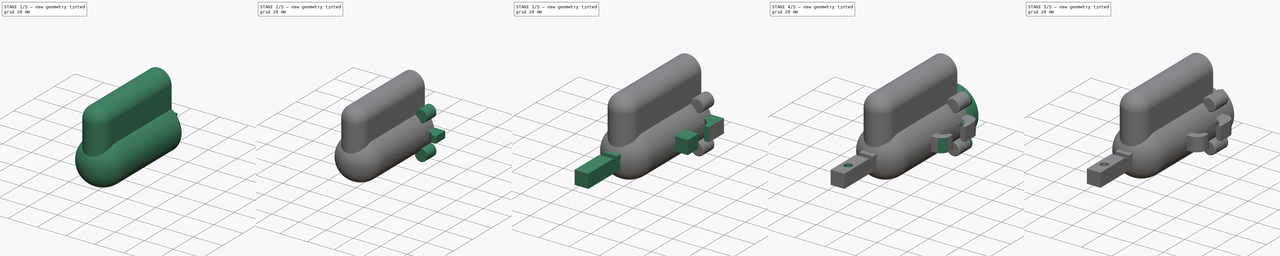
[diagram: build sequence overview — one tinted view per stage of 5, left to right]
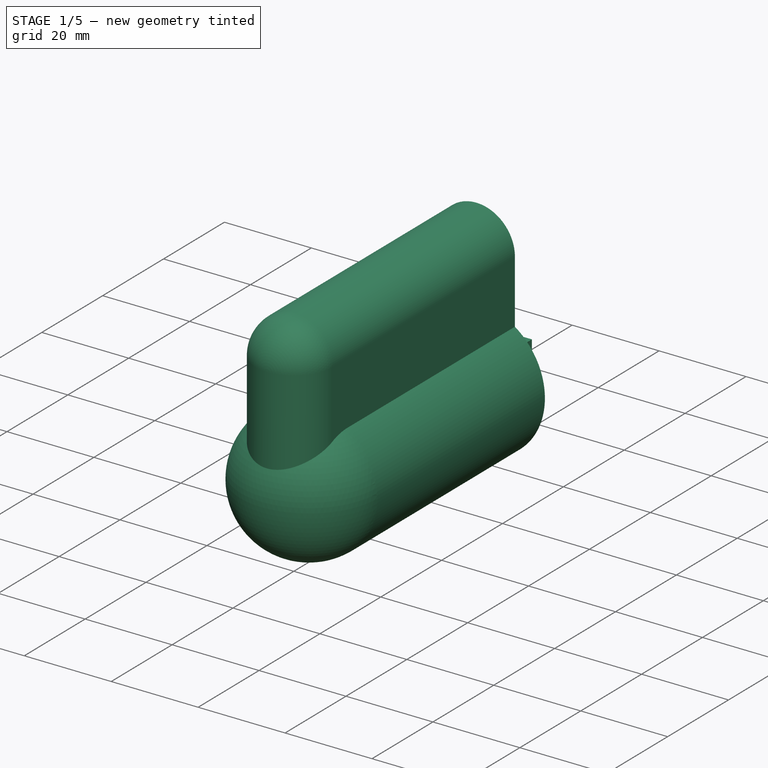
[diagram: stage 1 of 5 — iso view after this stage's code; geometry added in this stage tinted green]
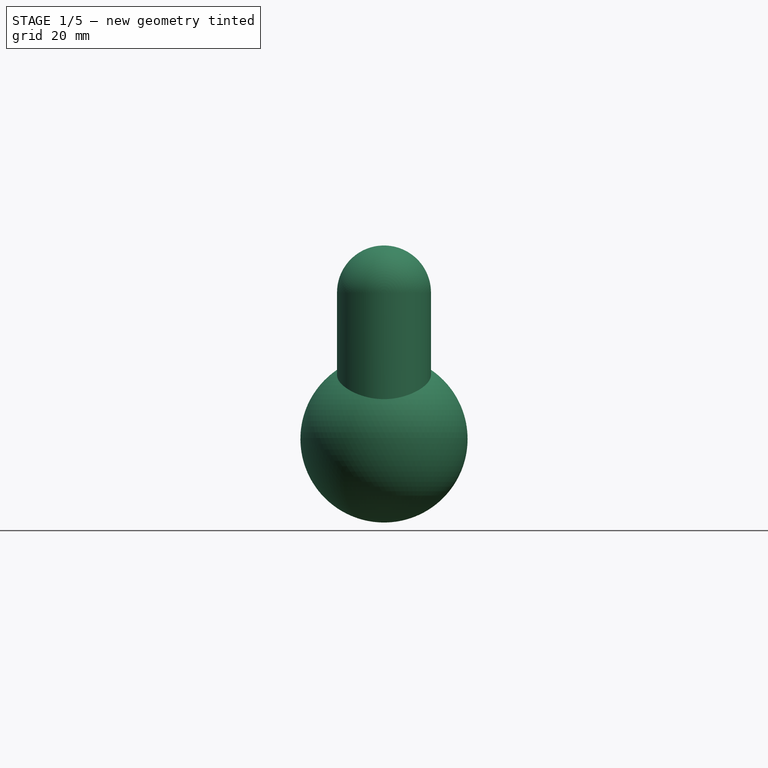
[diagram: stage 1 of 5 — front view after this stage's code; geometry added in this stage tinted green]
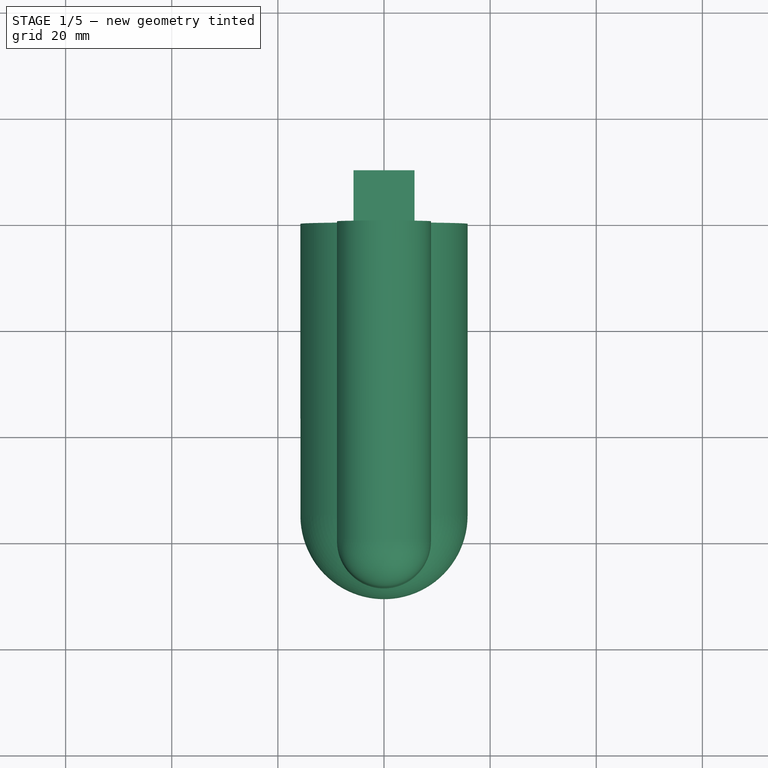
[diagram: stage 1 of 5 — top view after this stage's code; geometry added in this stage tinted green]
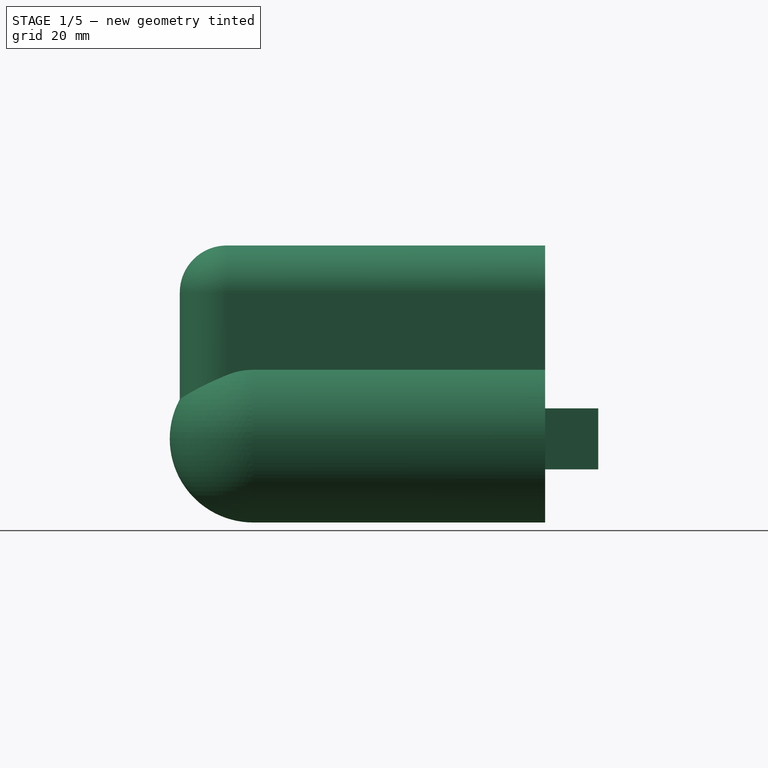
[diagram: stage 1 of 5 — right view after this stage's code; geometry added in this stage tinted green]
FCSTD DOCUMENT  (FreeCAD 0.19R24267 +99 (Git))
Label: miniU
License: All rights reserved
LicenseURL: http://en.wikipedia.org/wiki/All_rights_reserved
objects: PartDesign::AdditiveCylinder×11, PartDesign::SubtractiveCylinder×11, PartDesign::SubtractiveBox×7, PartDesign::Mirrored×7, PartDesign::AdditiveBox×6, PartDesign::Fillet×6, PartDesign::Body×5, PartDesign::PolarPattern×4, PartDesign::AdditiveSphere×2, PartDesign::SubtractiveSphere×2, Sketcher::SketchObject×1, PartDesign::SubtractiveWedge×1, PartDesign::AdditiveWedge×1, PartDesign::SubtractiveTorus×1
note: 113 computed .brp shape members not serialized (recipe doc carries the construction recipe); baked Part::Feature solids carry a one-line shape summary decoded from their .brp

FEATURE [PartDesign::AdditiveCylinder] Cylinder001  label="dart_holder_body"
  Angle = 360
  AttacherType = Attacher::AttachEngine3D
  AttachmentOffset = pos=(0,27.6,0) rot=(0,0,1;0rad)
  Height = 60
  MapMode = 5
  Placement = pos=(0,-6.1e-15,27.6) rot=(1,0,0;1.5708rad)
  Radius = 8.85
  Support = -> [XZ_Plane]
  expr: .AttachmentOffset.Base.y = Sketch.Constraints.chamberToHolder
  expr: Radius = Sketch.Constraints.rDartHolderOutside
  expr: Height = Sketch.Constraints.bodyLength + Sketch.Constraints.holderOffset
FEATURE [PartDesign::AdditiveBox] Box  label="chamber_holder_connector"
  AttacherType = Attacher::AttachEngine3D
  AttachmentOffset = pos=(-8.85,0,-60) rot=(0,0,1;0rad)
  BaseFeature = -> Cylinder001
  Height = 60
  Length = 17.7
  MapMode = 5
  Placement = pos=(-8.85,-60,27.6) rot=(-1,0,0;1.5708rad)
  Support = -> [Cylinder001]
  Width = 27.6
  expr: Length = Cylinder001.Radius * 2
  expr: .AttachmentOffset.Base.x = -Cylinder001.Radius
  expr: .AttachmentOffset.Base.z = -Cylinder001.Height
  expr: Height = Cylinder001.Height
  expr: Width = Sketch.Constraints.chamberToHolder
FEATURE [PartDesign::AdditiveSphere] Sphere  label="chamber_butt"
  Angle1 = -90
  Angle2 = 90
  Angle3 = 180
  AttacherType = Attacher::AttachEngine3D
  AttachmentOffset = pos=(-8.85,5,0) rot=(0,0,-1;3.14159rad)
  BaseFeature = -> Box
  MapMode = 5
  Placement = pos=(0,-55,-1.31e-14) rot=(-1,0,0;3.14159rad)
  Radius = 15.75
  Support = -> [Box]
  expr: .AttachmentOffset.Base.y = Sketch.Constraints.holderOffset
  expr: .AttachmentOffset.Base.x = -Cylinder001.Radius
  expr: Radius = Sketch.Constraints.rAirChamberOutside
FEATURE [PartDesign::AdditiveSphere] Sphere002  label="holder_butt"
  Angle1 = -90
  Angle2 = 90
  Angle3 = 360
  AttacherType = Attacher::AttachEngine3D
  BaseFeature = -> Sphere
  MapMode = 11
  Placement = pos=(0,-60,27.6) rot=(0.57735,-0.57735,0.57735;2.0944rad)
  Radius = 8.85
  Support = -> [Cylinder001]
  expr: Radius = Cylinder001.Radius
FEATURE [PartDesign::AdditiveCylinder] Cylinder  label="butt_connector"
  Angle = 180
  AttacherType = Attacher::AttachEngine3D
  AttachmentOffset = pos=(-8.85,0,-27.6) rot=(0,0,1;3.14159rad)
  BaseFeature = -> Sphere002
  Height = 27.6
  MapMode = 5
  Placement = pos=(0,-60,27.6) rot=(1,0,0;3.14159rad)
  Radius = 8.85
  Support = -> [Box]
  expr: .AttachmentOffset.Base.x = -Radius
  expr: Radius = Sphere002.Radius
  expr: Height = Box.Width
  expr: .AttachmentOffset.Base.z = -Box.Width
FEATURE [Sketcher::SketchObject] Sketch
  FullyConstrained = false
  MapMode = 5
  Placement = pos=(0,0,0) rot=(1,0,0;1.5708rad)
  expr: .Constraints.rAirChamber = 13.75mm
  expr: .Constraints.rDartHolderOutside = .Constraints.rDartHolder + .Constraints.wallThickness
  expr: .Constraints.chamberToHolder = .Constraints.rAirChamberOutside + .Constraints.rDartHolderOutside + .Constraints.triggerClearance
  expr: .Constraints.plungerHeadSpace = .Constraints.plungerHeadHeight + .Constraints.plungerConnectorHeight + 10mm
  sketch-geometry (34):
    g0: Circle CenterX=0 CenterY=-4e-16 CenterZ=0 NormalX=0 NormalY=0 NormalZ=1 AngleXU=0 Radius=13.75
    g1: Circle CenterX=0 CenterY=-4e-16 CenterZ=0 NormalX=0 NormalY=0 NormalZ=1 AngleXU=0 Radius=15.75
    g2: LineSegment StartX=0 StartY=-4e-16 StartZ=0 EndX=-11.1369 EndY=11.1369 EndZ=0
    g3: LineSegment StartX=0 StartY=-4e-16 StartZ=0 EndX=11.1369 EndY=-11.1369 EndZ=0
    g4: LineSegment StartX=0 StartY=-4e-16 StartZ=0 EndX=-11.1369 EndY=-11.1369 EndZ=0
    g5: LineSegment StartX=0 StartY=-4e-16 StartZ=0 EndX=11.1369 EndY=11.1369 EndZ=0
    g6: Circle CenterX=-12.9047 CenterY=12.9047 CenterZ=0 NormalX=0 NormalY=0 NormalZ=1 AngleXU=0 Radius=4.5
    g7: Circle CenterX=-12.9047 CenterY=12.9047 CenterZ=0 NormalX=0 NormalY=0 NormalZ=1 AngleXU=0 Radius=2.5
    g8: Circle CenterX=12.9047 CenterY=12.9047 CenterZ=0 NormalX=0 NormalY=0 NormalZ=1 AngleXU=0 Radius=4.5
    g9: Circle CenterX=12.9047 CenterY=-12.9047 CenterZ=0 NormalX=0 NormalY=0 NormalZ=1 AngleXU=0 Radius=4.5
    g10: Circle CenterX=-12.9047 CenterY=-12.9047 CenterZ=0 NormalX=0 NormalY=0 NormalZ=1 AngleXU=0 Radius=4.5
    g11: Circle CenterX=12.9047 CenterY=12.9047 CenterZ=0 NormalX=0 NormalY=0 NormalZ=1 AngleXU=0 Radius=2.5
    g12: Circle CenterX=12.9047 CenterY=-12.9047 CenterZ=0 NormalX=0 NormalY=0 NormalZ=1 AngleXU=0 Radius=2.5
    g13: Circle CenterX=-12.9047 CenterY=-12.9047 CenterZ=0 NormalX=0 NormalY=0 NormalZ=1 AngleXU=0 Radius=2.5
    g14: LineSegment StartX=-64.4343 StartY=16.9456 StartZ=0 EndX=-65.991 EndY=15.6899 EndZ=0
    g15: Circle CenterX=0 CenterY=27.6 CenterZ=0 NormalX=0 NormalY=0 NormalZ=1 AngleXU=0 Radius=6.85
    g16: Circle CenterX=0 CenterY=27.6 CenterZ=0 NormalX=0 NormalY=0 NormalZ=1 AngleXU=0 Radius=8.85
    g17: LineSegment StartX=-40.3343 StartY=20.9092 StartZ=0 EndX=-43.3342 EndY=20.8833 EndZ=0
    g18: LineSegment StartX=-20.9206 StartY=68.2193 StartZ=0 EndX=-61.9315 EndY=31.5708 EndZ=0
    g19: LineSegment StartX=21.11 StartY=51.0184 StartZ=0 EndX=24.006 EndY=46.9425 EndZ=0
    g20: LineSegment StartX=-12.7279 StartY=-12.7279 StartZ=0 EndX=12.7279 EndY=-12.7279 EndZ=0
    g21: LineSegment StartX=52.0801 StartY=33.9087 StartZ=0 EndX=59.1988 EndY=26.8856 EndZ=0
    g22: LineSegment StartX=35.6743 StartY=43.6176 StartZ=0 EndX=37.6673 EndY=43.4507 EndZ=0
    g23: Circle CenterX=-12.9047 CenterY=12.9047 CenterZ=0 NormalX=0 NormalY=0 NormalZ=1 AngleXU=0 Radius=2
    g24: LineSegment StartX=-26.9818 StartY=14.1414 StartZ=0 EndX=-26.9818 EndY=4.14137 EndZ=0
    g25: LineSegment StartX=-27.1419 StartY=18.6048 StartZ=0 EndX=-17.1419 EndY=18.6048 EndZ=0
    g26: LineSegment StartX=97.724 StartY=55.6573 StartZ=0 EndX=98.9263 EndY=52.9088 EndZ=0
    g27: LineSegment StartX=114.207 StartY=50.7764 StartZ=0 EndX=114.698 EndY=50.6847 EndZ=0
    g28: LineSegment StartX=128.072 StartY=57.8158 StartZ=0 EndX=130.022 EndY=55.5362 EndZ=0
    g29: LineSegment StartX=-61.6116 StartY=53.8695 StartZ=0 EndX=-84.0125 EndY=38.7962 EndZ=0
    g30: LineSegment StartX=-32.8534 StartY=69.7309 StartZ=0 EndX=67.1466 EndY=69.7309 EndZ=0
    g31: Circle CenterX=50.0754 CenterY=-16.528 CenterZ=0 NormalX=0 NormalY=0 NormalZ=1 AngleXU=0 Radius=9.625
    g32: LineSegment StartX=83.804 StartY=28.6893 StartZ=0 EndX=88.0476 EndY=23.1224 EndZ=0
    g33: LineSegment StartX=89.8323 StartY=40.8566 StartZ=0 EndX=96.5827 EndY=33.4789 EndZ=0
  constraints (65):
    c: Coincident(g0,g-1)
    c: Coincident(g1,g0)
    c: Radius(g0) = 13.75  'rAirChamber'
    c: Radius(g1) = 15.75  'rAirChamberOutside'
    c: Coincident(g2,g0)
    c: PointOnObject(g2,g1)
    c: Coincident(g3,g0)
    c: PointOnObject(g3,g1)
    c: Coincident(g4,g0)
    c: PointOnObject(g4,g1)
    c: Angle(g2) = 2.35619
    c: Angle(g3) = -0.785398
    c: Angle(g4) = -2.35619
    c: Coincident(g5,g0)
    c: PointOnObject(g5,g1)
    c: Angle(g5) = 0.785398
    c: PointOnObject(g6,g2)
    c: Diameter(g6) = 9  'dNutOutside'
    c: Coincident(g7,g6)
    c: Diameter(g7) = 5  'dInsert'
    c: Equal(g8,g10)
    c: PointOnObject(g8,g5)
    c: PointOnObject(g9,g3)
    c: PointOnObject(g10,g4)
    c: Coincident(g11,g8)
    c: Coincident(g12,g9)
    c: Coincident(g13,g10)
    c: Equal(g11,g12)
    c: Distance(g14) = 2  'wallThickness'
    c: PointOnObject(g15,g-2)
    c: Coincident(g16,g15)
    c: Radius(g15) = 6.85  'rDartHolder'
    c: Radius(g16) = 8.85  'rDartHolderOutside'
    c: Distance(g15,g0) = 27.6  'chamberToHolder'
    c: Distance(g17) = 3  'triggerClearance'
    c: Distance(g18) = 55  'bodyLength'
    c: Tangent(g6,g0)
    c: Tangent(g8,g0)
    c: Tangent(g9,g0)
    c: Tangent(g10,g0)
    c: Distance(g19) = 5  'holderOffset'
    c: Distance(g20) = 25.4558  'threadDistance'
    c: Distance(g21) = 10  'chamberCapThickness'
    c: Radius(g6) = 4.5  'rNutOutside'
    c: Radius(g7) = 2.5  'rInsert'
    c: Distance(g22) = 2  'capThreadThickness'
    c: Coincident(g23,g6)
    c: Radius(g23) = 2  'rThread'
    c: Vertical(g24)
    c: Horizontal(g25)
    c: Distance(g25) = 10  'capHoleWidth'
    c: Distance(g24) = 10  'capHoleLength'
    c: Equal(g6,g8)
    c: Equal(g8,g9)
    c: Equal(g12,g13)
    c: Distance(g26) = 3  'triggerFrame'
    c: Distance(g27) = 0.5  'triggerFrameClearance'
    c: Distance(g28) = 3  'triggerFrameThickness'
    c: Distance(g29) = 27  'plungerHeadSpace'
    c: Horizontal(g30)
    c: Distance(g30) = 100  'plungerLength'
    c: Diameter(g31) = 19.25  'dPlungerHead'
    c: Radius(g31) = 9.625  'rPlungerHead'
    c: Distance(g32) = 7  'plungerHeadHeight'
    c: Distance(g33) = 10  'plungerConnectorHeight'
FEATURE [PartDesign::AdditiveCylinder] Cylinder002  label="air_chamber_body"
  Angle = 360
  AttacherType = Attacher::AttachEngine3D
  BaseFeature = -> Cylinder
  Height = 55
  MapMode = 2
  Placement = pos=(0,0,0) rot=(1,0,0;1.5708rad)
  Radius = 15.75
  Support = -> [Sketch]
  expr: Radius = Sketch.Constraints.rAirChamberOutside
  expr: Height = Cylinder001.Height - Sketch.Constraints.holderOffset
FEATURE [PartDesign::SubtractiveCylinder] Cylinder003  label="air_chamber"
  Angle = 360
  AttacherType = Attacher::AttachEngine3D
  BaseFeature = -> Cylinder002
  Height = 55
  MapMode = 2
  Placement = pos=(0,0,0) rot=(1,0,0;1.5708rad)
  Radius = 13.75
  Support = -> [Sketch]
  expr: Radius = Sketch.Constraints.rAirChamber
  expr: Height = Cylinder001.Height - Sketch.Constraints.holderOffset
FEATURE [PartDesign::SubtractiveCylinder] Cylinder004  label="butt_connector_channel"
  Angle = 180
  AttacherType = Attacher::AttachEngine3D
  BaseFeature = -> Cylinder003
  Height = 27.6
  MapMode = 2
  Placement = pos=(0,-60,27.6) rot=(1,0,0;3.14159rad)
  Radius = 6.85
  Support = -> [Cylinder]
  expr: Radius = Cylinder.Radius - 2mm
  expr: Height = Cylinder.Height
FEATURE [PartDesign::AdditiveBox] Box002  label="plunger_body"
  AttacherType = Attacher::AttachEngine3D
  AttachmentOffset = pos=(-4.5,-4.5,0) rot=(0,0,1;0rad)
  Height = 100
  Length = 9
  MapMode = 5
  Placement = pos=(-4.5,1e-15,-4.5) rot=(1,0,0;1.5708rad)
  Refine = true
  Support = -> [XZ_Plane003]
  Width = 9
  expr: .AttachmentOffset.Base.x = -Length / 2
  expr: .AttachmentOffset.Base.y = -Width / 2
  expr: Length = Sketch.Constraints.capHoleLength - 1mm
  expr: Width = Sketch.Constraints.capHoleWidth - 1mm
  expr: Height = Sketch.Constraints.plungerLength
FEATURE [PartDesign::AdditiveCylinder] Cylinder019  label="plunger_head001"
  Angle = 360
  AttacherType = Attacher::AttachEngine3D
  Height = 7
  MapMode = 5
  Placement = pos=(0,0,0) rot=(1,0,0;1.5708rad)
  Radius = 10.125
  Refine = true
  Support = -> [XZ_Plane004]
  expr: Radius = Sketch.Constraints.rPlungerHead + 0.5mm
  expr: Height = Sketch.Constraints.plungerHeadHeight
FEATURE [PartDesign::AdditiveBox] Box016  label="plunger_connector"
  AttacherType = Attacher::AttachEngine3D
  AttachmentOffset = pos=(-5.75,-5.75,0) rot=(0,0,1;0rad)
  BaseFeature = -> Cylinder019
  Height = 10
  Length = 11.5
  MapMode = 5
  Placement = pos=(-5.75,-1.3e-15,5.75) rot=(-1,0,0;1.5708rad)
  Refine = true
  Support = -> [Cylinder019]
  Width = 11.5
  expr: .AttachmentOffset.Base.x = -Length / 2
  expr: .AttachmentOffset.Base.y = -Width / 2
  expr: Length = <<plunger_body>>.Length + Sketch.Constraints.wallThickness + 0.5mm
  expr: Width = <<plunger_body>>.Width + Sketch.Constraints.wallThickness + 0.5mm
  expr: Height = Sketch.Constraints.plungerConnectorHeight
FEATURE [PartDesign::Body] Body  label="body"
  Group = -> [Cylinder001,Box,Sphere,Sphere002,Cylinder,Cylinder002,Cylinder003,Cylinder004,Sphere003,Cylinder005,Sphere004,Cylinder006,PolarPattern,Cylinder007,PolarPattern001,Box018,Mirrored008,Cylinder022,Mirrored009,Fillet017,Fillet018,Fillet019]
  Origin = -> Origin
  Tip = -> Fillet019
FEATURE [PartDesign::AdditiveCylinder] Cylinder023
  Angle = 360
  AttacherType = Attacher::AttachEngine3D
  AttachmentOffset = pos=(0,0,0) rot=(0,0,1;3.14159rad)
  BaseFeature = -> Box016
  Height = 2.5
  MapMode = 2
  Placement = pos=(0,0,0) rot=(0,-0.707107,0.707107;3.14159rad)
  Radius = 10.325
  Refine = true
  Support = -> [XZ_Plane004]
  expr: Radius = <<plunger_head001>>.Radius + 0.2mm
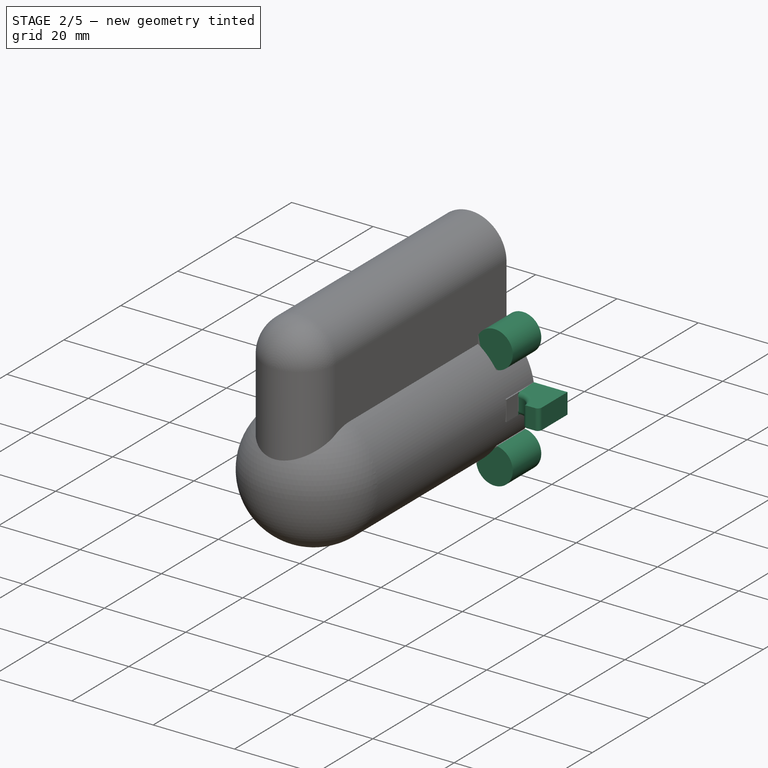
[diagram: stage 2 of 5 — iso view after this stage's code; geometry added in this stage tinted green]
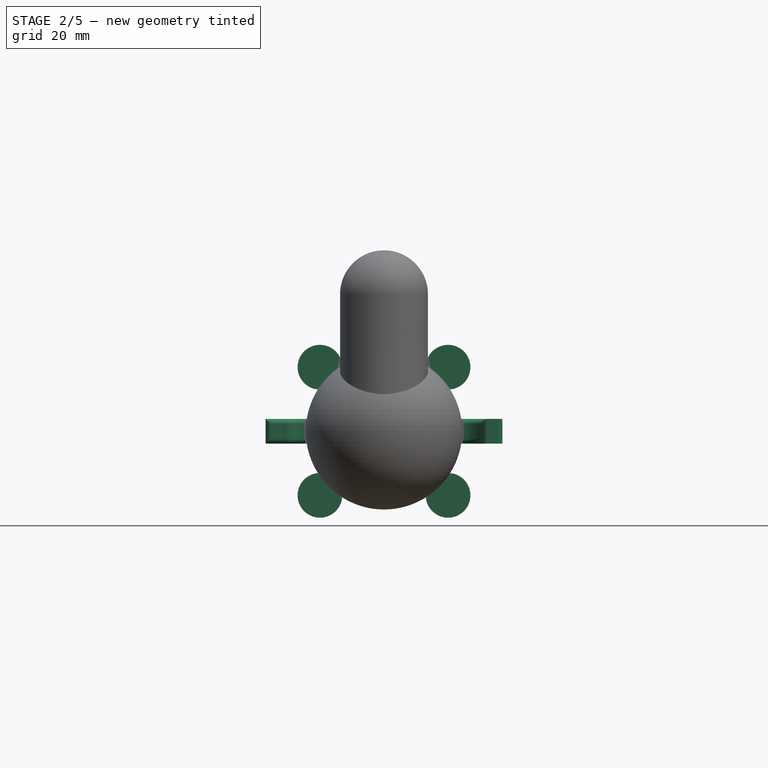
[diagram: stage 2 of 5 — front view after this stage's code; geometry added in this stage tinted green]
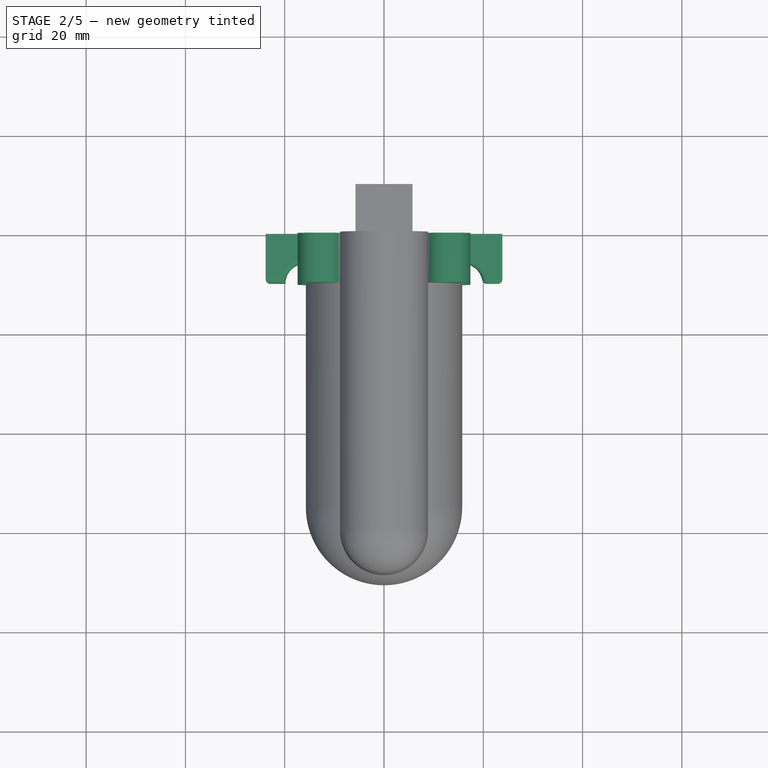
[diagram: stage 2 of 5 — top view after this stage's code; geometry added in this stage tinted green]
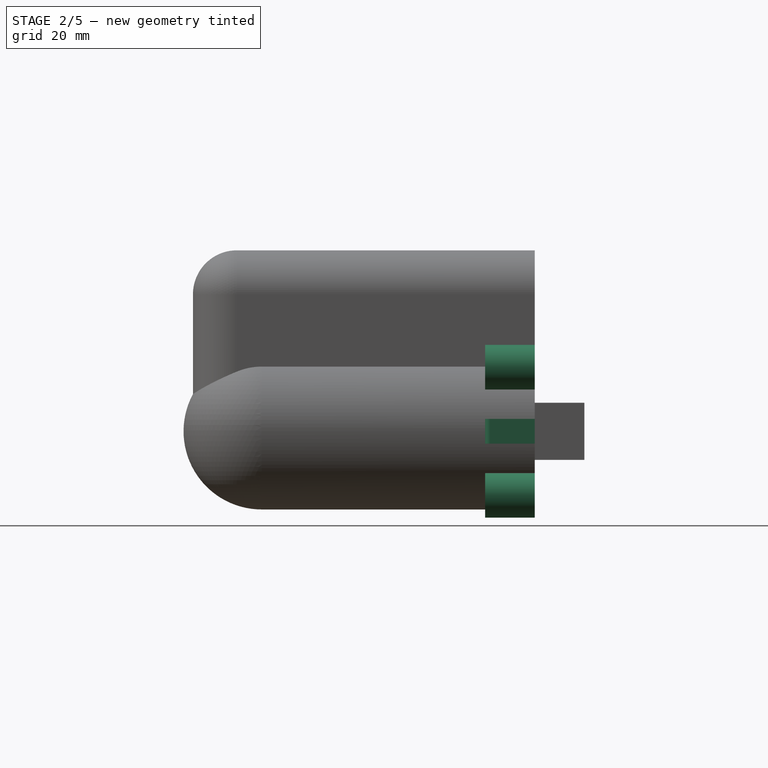
[diagram: stage 2 of 5 — right view after this stage's code; geometry added in this stage tinted green]
FEATURE [PartDesign::SubtractiveSphere] Sphere003
  Angle1 = -90
  Angle2 = 90
  Angle3 = 180
  AttacherType = Attacher::AttachEngine3D
  BaseFeature = -> Cylinder004
  MapMode = 2
  Placement = pos=(0,-55,-1.31e-14) rot=(1,0,0;3.14159rad)
  Radius = 13.75
  Support = -> [Sphere]
  expr: Radius = Sketch.Constraints.rAirChamber
FEATURE [PartDesign::SubtractiveCylinder] Cylinder005  label="dart_holder"
  Angle = 360
  AttacherType = Attacher::AttachEngine3D
  AttachmentOffset = pos=(0,0,-60) rot=(0,0,1;0rad)
  BaseFeature = -> Sphere003
  Height = 60
  MapMode = 5
  Placement = pos=(0,-60,27.6) rot=(-1,0,0;1.5708rad)
  Radius = 6.85
  Support = -> [Cylinder001]
  expr: Radius = Cylinder001.Radius - 2mm
  expr: Height = Cylinder001.Height
  expr: .AttachmentOffset.Base.z = -Cylinder001.Height
FEATURE [PartDesign::SubtractiveSphere] Sphere004
  Angle1 = -90
  Angle2 = 90
  Angle3 = 360
  AttacherType = Attacher::AttachEngine3D
  BaseFeature = -> Cylinder005
  MapMode = 2
  Placement = pos=(0,-60,27.6) rot=(-0.57735,0.57735,-0.57735;4.18879rad)
  Radius = 6.85
  Support = -> [Sphere002]
  expr: Radius = Sphere002.Radius - 2mm
FEATURE [PartDesign::AdditiveCylinder] Cylinder006
  Angle = 360
  AttacherType = Attacher::AttachEngine3D
  BaseFeature = -> Sphere004
  Height = 10
  MapMode = 11
  Placement = pos=(-12.9047,2.9e-15,12.9047) rot=(0.57735,-0.57735,0.57735;2.0944rad)
  Radius = 4.5
  Support = -> [Sketch]
  expr: Radius = Sketch.Constraints.dNutOutside / 2
FEATURE [PartDesign::PolarPattern] PolarPattern
  Angle = 360
  Axis = -> Y_Axis
  BaseFeature = -> Cylinder006
  Occurrences = 4
  Originals = -> [Cylinder006]
  Placement = pos=(-12.9047,2.9e-15,12.9047) rot=(0.57735,-0.57735,0.57735;2.0944rad)
FEATURE [PartDesign::SubtractiveCylinder] Cylinder007
  Angle = 360
  AttacherType = Attacher::AttachEngine3D
  BaseFeature = -> PolarPattern
  Height = 8
  MapMode = 11
  Placement = pos=(-12.9047,2.9e-15,12.9047) rot=(0.57735,-0.57735,0.57735;2.0944rad)
  Radius = 2.5
  Support = -> [Sketch]
  expr: Radius = Sketch.Constraints.dInsert / 2
  expr: Height = Cylinder006.Height - 2mm
FEATURE [PartDesign::PolarPattern] PolarPattern001
  Angle = 360
  Axis = -> Y_Axis
  BaseFeature = -> Cylinder007
  Occurrences = 4
  Originals = -> [Cylinder007]
  Placement = pos=(-12.9047,2.9e-15,12.9047) rot=(0.57735,-0.57735,0.57735;2.0944rad)
FEATURE [PartDesign::Body] Body003  label="plunger"
  Group = -> [Box002,Wedge,Box012,Mirrored003,Cylinder017,Mirrored004,Box015,Mirrored006,Cylinder018,Mirrored007,Fillet014,Fillet015,Cylinder021]
  Origin = -> Origin003
  Placement = pos=(0,180,0) rot=(0,0,1;0rad)
  Tip = -> Cylinder021
FEATURE [PartDesign::AdditiveBox] Box018  label="band_holder_body_l"
  AttacherType = Attacher::AttachEngine3D
  AttachmentOffset = pos=(13.85,-2.5,0) rot=(0,0,1;0rad)
  BaseFeature = -> PolarPattern001
  Height = 10
  Length = 10
  MapMode = 5
  Placement = pos=(13.85,6e-16,-2.5) rot=(1,0,0;1.5708rad)
  Refine = true
  Support = -> [XZ_Plane]
  Width = 5
  expr: .AttachmentOffset.Base.x = <<air_chamber>>.Radius + 0.1mm
  expr: .AttachmentOffset.Base.y = -Width / 2
FEATURE [PartDesign::Mirrored] Mirrored008
  BaseFeature = -> Box018
  MirrorPlane = -> YZ_Plane
  Originals = -> [Box018]
  Placement = pos=(13.85,6e-16,-2.5) rot=(1,0,0;1.5708rad)
  Refine = true
FEATURE [PartDesign::SubtractiveCylinder] Cylinder022  label="band_holder_l"
  Angle = 90
  AttacherType = Attacher::AttachEngine3D
  AttachmentOffset = pos=(8,0,0) rot=(0,1,0;3.14159rad)
  BaseFeature = -> Mirrored008
  Height = 5
  MapMode = 7
  Placement = pos=(15.85,-10,-2.5) rot=(0,0,1;0rad)
  Radius = 4
  Refine = true
  Support = -> [Mirrored008]
  expr: Height = <<band_holder_body_l>>.Width
  expr: .AttachmentOffset.Base.x = <<band_holder_body_l>>.Length - Sketch.Constraints.wallThickness
FEATURE [PartDesign::Mirrored] Mirrored009
  BaseFeature = -> Cylinder022
  MirrorPlane = -> YZ_Plane
  Originals = -> [Cylinder022]
  Placement = pos=(15.85,-10,-2.5) rot=(0,0,1;0rad)
  Refine = true
FEATURE [PartDesign::Fillet] Fillet017
  Base = -> Mirrored009 [Edge91,Edge87,Edge93,Edge134,Edge107,Edge108,Edge101,Edge102,Edge105]
  BaseFeature = -> Mirrored009
  Placement = pos=(15.85,-10,-2.5) rot=(0,0,1;0rad)
  Radius = 1
  Refine = true
  SupportTransform = false
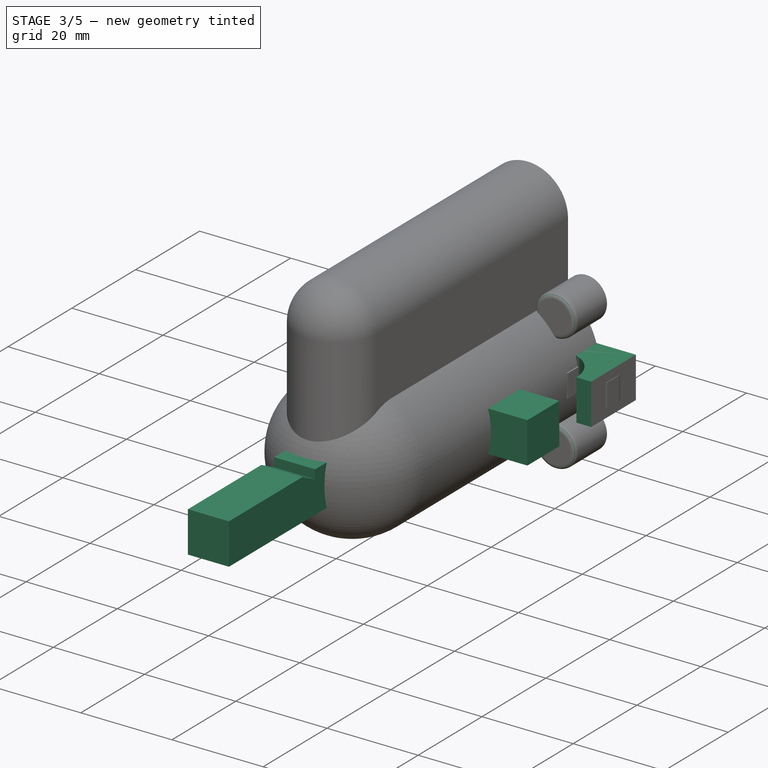
[diagram: stage 3 of 5 — iso view after this stage's code; geometry added in this stage tinted green]
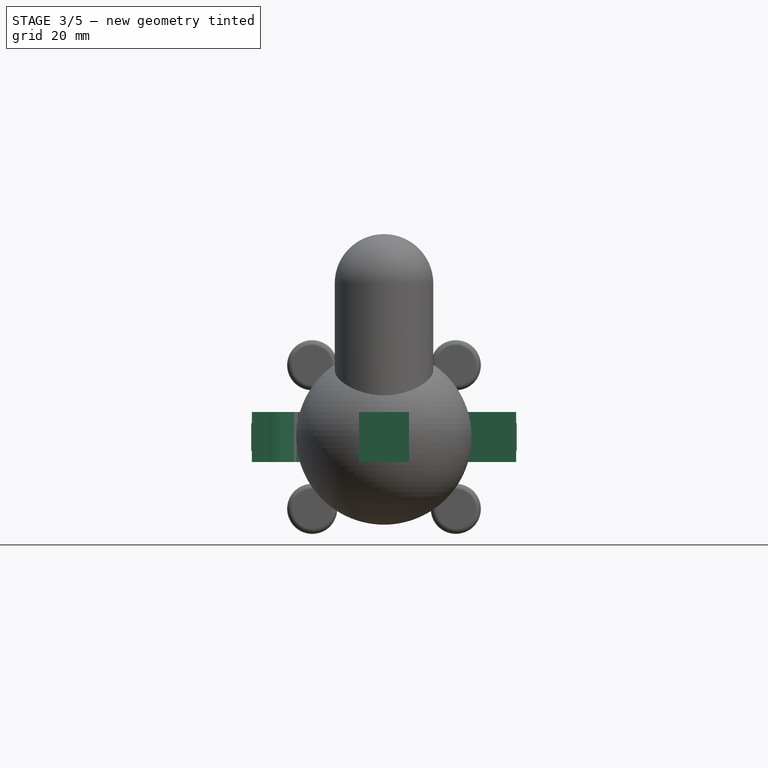
[diagram: stage 3 of 5 — front view after this stage's code; geometry added in this stage tinted green]
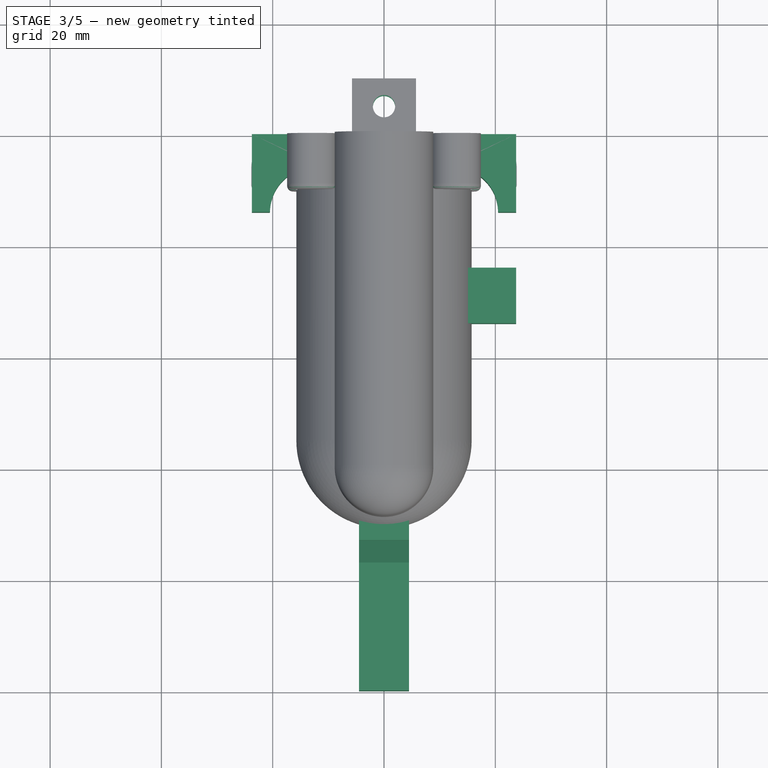
[diagram: stage 3 of 5 — top view after this stage's code; geometry added in this stage tinted green]
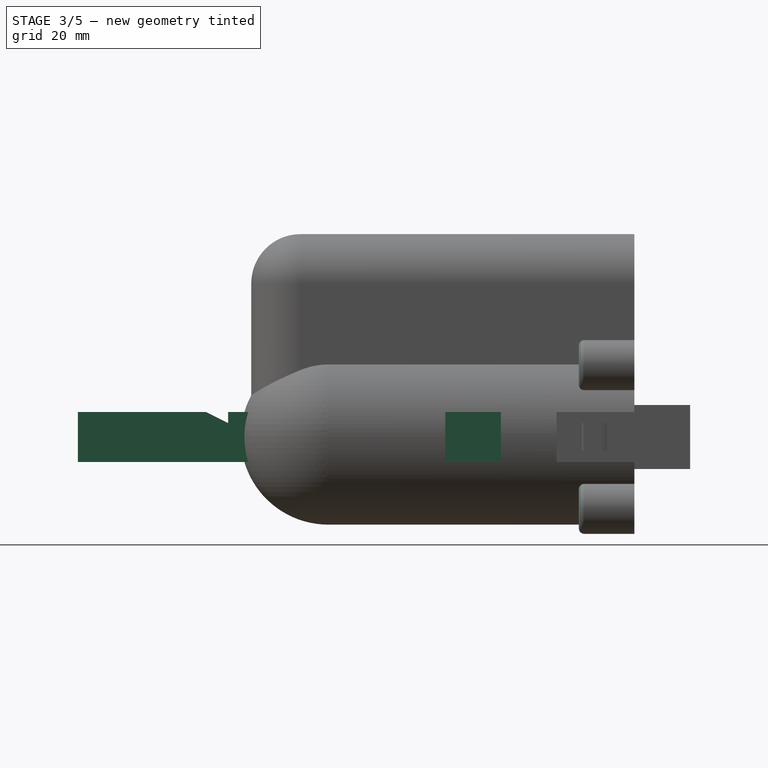
[diagram: stage 3 of 5 — right view after this stage's code; geometry added in this stage tinted green]
FEATURE [PartDesign::SubtractiveWedge] Wedge
  AttacherType = Attacher::AttachEngine3D
  AttachmentOffset = pos=(-9,73,-2) rot=(0,0,1;0rad)
  BaseFeature = -> Box002
  MapMode = 5
  Placement = pos=(4.5,-73,2.5) rot=(0,0,1;3.14159rad)
  Refine = true
  Support = -> [Box002]
  X2max = 9
  X2min = 0
  Xmax = 9
  Xmin = 0
  Ymax = 4
  Ymin = 0
  Z2max = 2
  Z2min = 2
  Zmax = 2
  Zmin = 0
  expr: X2max = Xmax
  expr: Xmax = <<plunger_body>>.Length
  expr: .AttachmentOffset.Base.y = Box002.Height - Sketch.Constraints.plungerHeadSpace
  expr: .AttachmentOffset.Base.x = -Xmax / 2 - Box002.Length / 2
FEATURE [PartDesign::Body] Body001  label="cap"
  Group = -> [Cylinder008,Cylinder009,PolarPattern002,Cylinder010,PolarPattern003,Box001,Box003,Box004,Fillet005]
  Origin = -> Origin001
  Placement = pos=(0,20,0) rot=(0,0,1;0rad)
  Tip = -> Fillet005
FEATURE [PartDesign::AdditiveBox] Box012  label="plunger_handle"
  AttacherType = Attacher::AttachEngine3D
  AttachmentOffset = pos=(0,0,0) rot=(0.707107,-0.707107,0;3.14159rad)
  BaseFeature = -> Wedge
  Height = 9
  Length = 14
  MapMode = 7
  Placement = pos=(4.5,0,-4.5) rot=(0,0,-1;1.5708rad)
  Refine = true
  Support = -> [Wedge]
  Width = 19.25
  expr: Width = <<air_chamber>>.Radius + <<band_holder_body_l>>.Length - <<plunger_body>>.Length / 2
  expr: Height = <<plunger_body>>.Width
FEATURE [PartDesign::Mirrored] Mirrored003
  BaseFeature = -> Box012
  MirrorPlane = -> YZ_Plane003
  Originals = -> [Box012]
  Placement = pos=(4.5,0,-4.5) rot=(0,0,-1;1.5708rad)
  Refine = true
FEATURE [PartDesign::SubtractiveCylinder] Cylinder017
  Angle = 180
  AttacherType = Attacher::AttachEngine3D
  AttachmentOffset = pos=(11.25,0,0) rot=(0,1,0;3.14159rad)
  BaseFeature = -> Mirrored003
  Height = 10
  MapMode = 7
  Placement = pos=(12.5,-14,-4.5) rot=(0,0,1;0rad)
  Radius = 8
  Refine = true
  Support = -> [Mirrored003]
  expr: .AttachmentOffset.Base.x = <<plunger_handle>>.Width - Radius
FEATURE [PartDesign::Mirrored] Mirrored004
  BaseFeature = -> Cylinder017
  MirrorPlane = -> YZ_Plane003
  Originals = -> [Cylinder017]
  Placement = pos=(12.5,-14,-4.5) rot=(0,0,1;0rad)
  Refine = true
FEATURE [PartDesign::AdditiveBox] Box015
  AttacherType = Attacher::AttachEngine3D
  AttachmentOffset = pos=(0,-10,0) rot=(0.707107,-0.707107,0;3.14159rad)
  BaseFeature = -> Mirrored004
  Height = 9
  Length = 10
  MapMode = 7
  Placement = pos=(4.5,-24,-4.5) rot=(0,0,-1;1.5708rad)
  Refine = true
  Support = -> [Mirrored004]
  Width = 19.25
  expr: Length = <<band_holder_body_l>>.Height
  expr: Width = <<plunger_handle>>.Width
  expr: Height = <<plunger_body>>.Width
FEATURE [PartDesign::Fillet] Fillet018
  Base = -> Fillet017 [Edge29,Edge12]
  BaseFeature = -> Fillet017
  Placement = pos=(15.85,-10,-2.5) rot=(0,0,1;0rad)
  Radius = 6
  Refine = true
  SupportTransform = false
FEATURE [PartDesign::Fillet] Fillet019
  Base = -> Fillet018 [Edge108,Edge107,Edge94,Edge90]
  BaseFeature = -> Fillet018
  Placement = pos=(15.85,-10,-2.5) rot=(0,0,1;0rad)
  Radius = 1
  Refine = true
  SupportTransform = false
FEATURE [PartDesign::SubtractiveBox] Box017
  AttacherType = Attacher::AttachEngine3D
  AttachmentOffset = pos=(-4.75,-4.75,-10) rot=(0,0,1;0rad)
  BaseFeature = -> Cylinder023
  Height = 15
  Length = 9.5
  MapMode = 5
  Placement = pos=(-4.75,10,-4.75) rot=(1,0,0;1.5708rad)
  Refine = true
  Support = -> [XZ_Plane004]
  Width = 9.5
  expr: .AttachmentOffset.Base.z = -Box016.Height
  expr: Height = Box016.Height + Cylinder019.Height - Sketch.Constraints.wallThickness
  expr: Length = <<plunger_body>>.Length + 0.5mm
  expr: Width = <<plunger_body>>.Width + 0.5mm
FEATURE [PartDesign::SubtractiveCylinder] Cylinder020
  Angle = 360
  AttacherType = Attacher::AttachEngine3D
  AttachmentOffset = pos=(0,5,5.75) rot=(1,0,0;3.14159rad)
  BaseFeature = -> Box017
  Height = 11.5
  MapMode = 5
  Placement = pos=(0,5,5.75) rot=(1,0,0;3.14159rad)
  Radius = 2
  Refine = true
  Support = -> [XY_Plane004]
  expr: Radius = Sketch.Constraints.rThread
  expr: Height = <<plunger_connector>>.Width
  expr: .AttachmentOffset.Base.z = <<plunger_connector>>.Width / 2
  expr: .AttachmentOffset.Base.y = <<plunger_connector>>.Height / 2
FEATURE [PartDesign::SubtractiveTorus] Torus
  Angle1 = -180
  Angle2 = 180
  Angle3 = 360
  AttacherType = Attacher::AttachEngine3D
  AttachmentOffset = pos=(0,0,3.5) rot=(0,0,1;0rad)
  BaseFeature = -> Cylinder020
  MapMode = 5
  Placement = pos=(0,-3.5,-8e-16) rot=(1,0,0;1.5708rad)
  Radius1 = 9.625
  Radius2 = 1.25
  Refine = true
  Support = -> [XZ_Plane004]
  expr: Radius1 = Sketch.Constraints.rPlungerHead
  expr: .AttachmentOffset.Base.z = <<plunger_head001>>.Height / 2
FEATURE [PartDesign::Body] Body004  label="plunger_head"
  Group = -> [Cylinder019,Box016,Cylinder023,Box017,Cylinder020,Torus]
  Origin = -> Origin004
  Placement = pos=(0,60,0) rot=(0,0,1;0rad)
  Tip = -> Torus
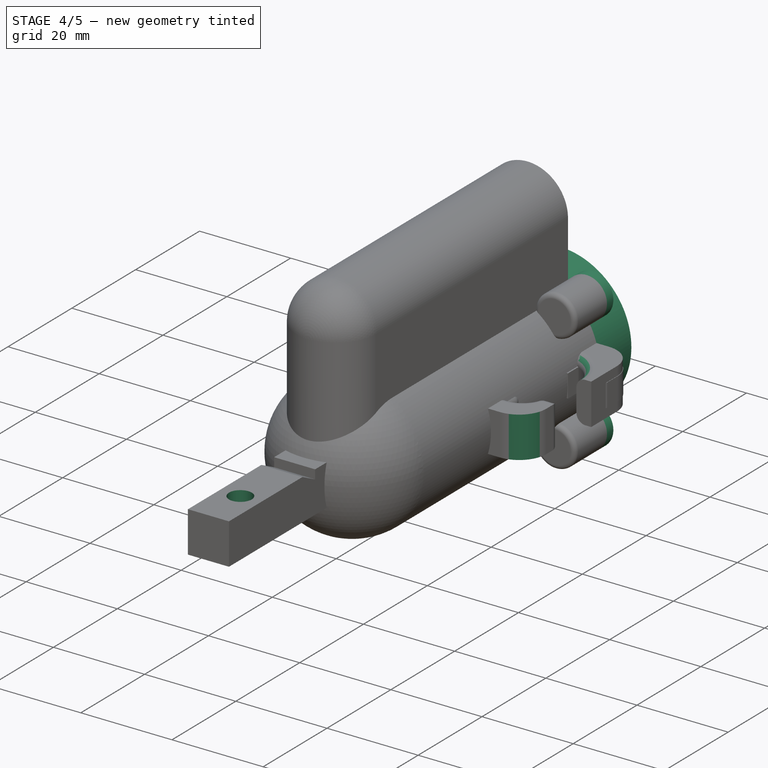
[diagram: stage 4 of 5 — iso view after this stage's code; geometry added in this stage tinted green]
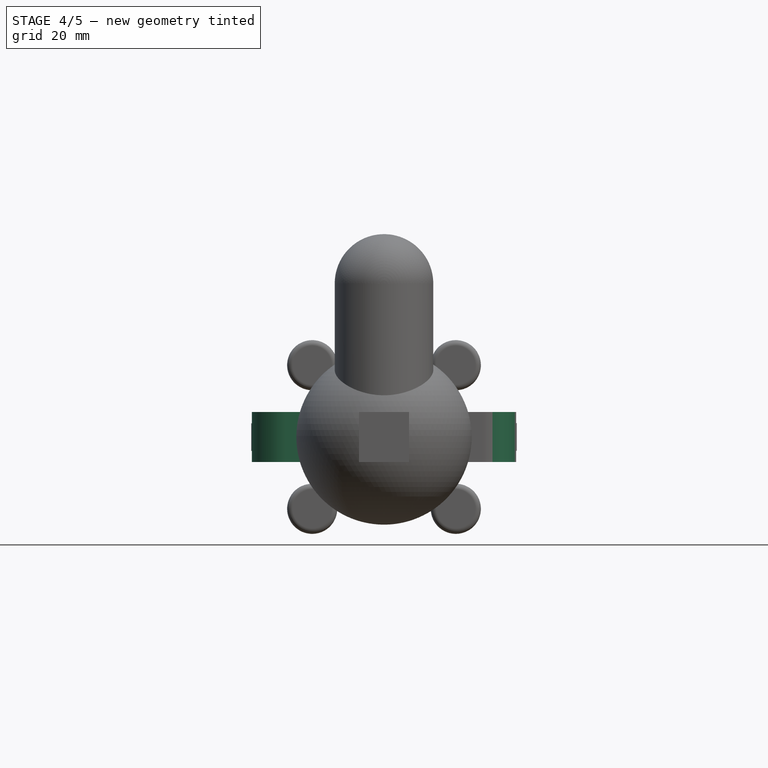
[diagram: stage 4 of 5 — front view after this stage's code; geometry added in this stage tinted green]
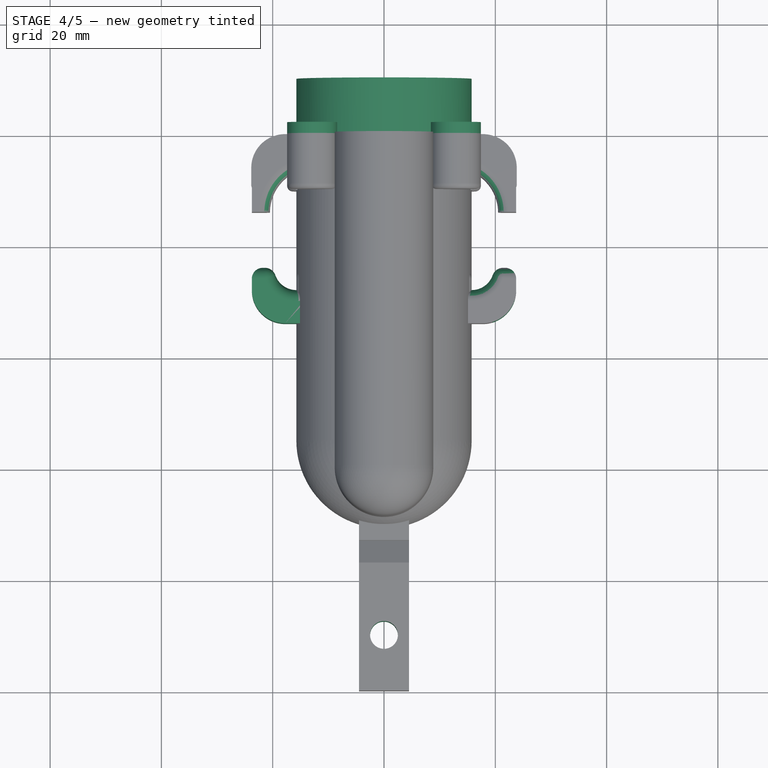
[diagram: stage 4 of 5 — top view after this stage's code; geometry added in this stage tinted green]
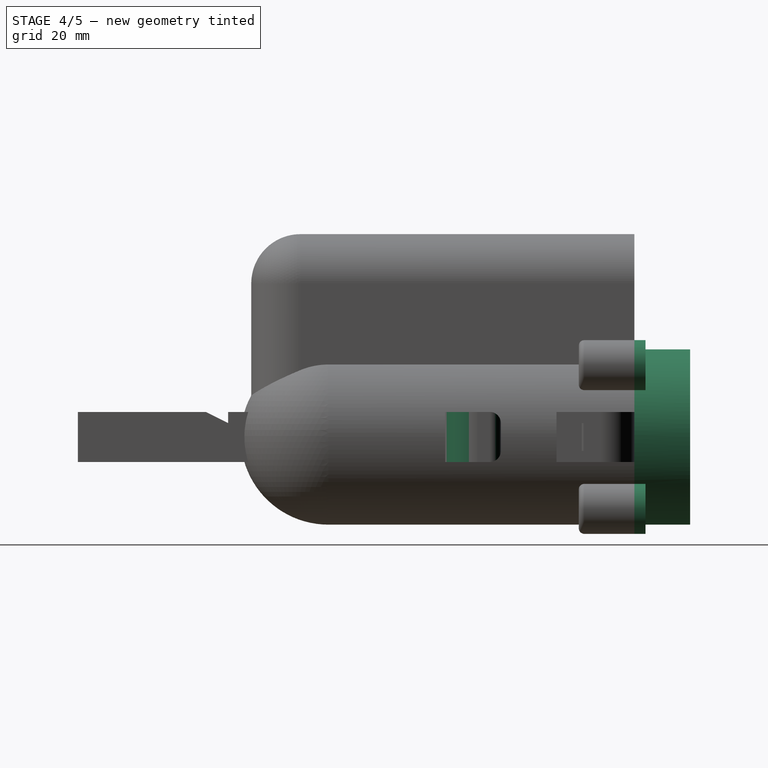
[diagram: stage 4 of 5 — right view after this stage's code; geometry added in this stage tinted green]
FEATURE [PartDesign::AdditiveCylinder] Cylinder008  label="cap_body"
  Angle = 360
  AttacherType = Attacher::AttachEngine3D
  AttachmentOffset = pos=(0,0,0) rot=(0,1,0;3.14159rad)
  Height = 10
  MapMode = 5
  Placement = pos=(0,0,0) rot=(0,0.707107,0.707107;3.14159rad)
  Radius = 15.75
  Refine = true
  Support = -> [XZ_Plane001]
  expr: Radius = Sketch.Constraints.rAirChamberOutside
  expr: Height = Sketch.Constraints.chamberCapThickness
FEATURE [PartDesign::AdditiveCylinder] Cylinder009
  Angle = 360
  AttacherType = Attacher::AttachEngine3D
  AttachmentOffset = pos=(0,0,0) rot=(0,1,0;3.14159rad)
  BaseFeature = -> Cylinder008
  Height = 2
  MapMode = 11
  Placement = pos=(12.9047,-2.9e-15,-12.9047) rot=(-0.57735,0.57735,0.57735;2.0944rad)
  Radius = 4.5
  Refine = true
  Support = -> [Sketch]
  expr: Height = Sketch.Constraints.capThreadThickness
  expr: Radius = Sketch.Constraints.rNutOutside
FEATURE [PartDesign::PolarPattern] PolarPattern002
  Angle = 360
  Axis = -> Y_Axis001
  BaseFeature = -> Cylinder009
  Occurrences = 4
  Originals = -> [Cylinder009]
  Placement = pos=(12.9047,-2.9e-15,-12.9047) rot=(-0.57735,0.57735,0.57735;2.0944rad)
  Refine = true
FEATURE [PartDesign::SubtractiveCylinder] Cylinder010
  Angle = 360
  AttacherType = Attacher::AttachEngine3D
  AttachmentOffset = pos=(0,0,0) rot=(0,1,0;3.14159rad)
  BaseFeature = -> PolarPattern002
  Height = 4
  MapMode = 11
  Placement = pos=(12.9047,2.9e-15,12.9047) rot=(-0.57735,0.57735,0.57735;2.0944rad)
  Radius = 2
  Refine = true
  Support = -> [Sketch]
  expr: Radius = Sketch.Constraints.rThread
  expr: Height = Cylinder009.Height * 2
FEATURE [PartDesign::PolarPattern] PolarPattern003
  Angle = 360
  Axis = -> Y_Axis001
  BaseFeature = -> Cylinder010
  Occurrences = 4
  Originals = -> [Cylinder010]
  Placement = pos=(12.9047,2.9e-15,12.9047) rot=(-0.57735,0.57735,0.57735;2.0944rad)
  Refine = true
FEATURE [PartDesign::SubtractiveBox] Box001  label="cap_hole"
  AttacherType = Attacher::AttachEngine3D
  AttachmentOffset = pos=(5,-5,0) rot=(0,1,0;3.14159rad)
  BaseFeature = -> PolarPattern003
  Height = 10
  Length = 10
  MapMode = 5
  Placement = pos=(5,1.1e-15,-5) rot=(0,0.707107,0.707107;3.14159rad)
  Refine = true
  Support = -> [XZ_Plane001]
  Width = 10
  expr: Height = Cylinder008.Height
  expr: Width = Sketch.Constraints.capHoleWidth
  expr: Length = Sketch.Constraints.capHoleLength
  expr: .AttachmentOffset.Base.y = -Width / 2
  expr: .AttachmentOffset.Base.x = Length / 2
FEATURE [PartDesign::Mirrored] Mirrored006
  BaseFeature = -> Box015
  MirrorPlane = -> YZ_Plane003
  Originals = -> [Box015]
  Placement = pos=(4.5,-24,-4.5) rot=(0,0,-1;1.5708rad)
  Refine = true
FEATURE [PartDesign::SubtractiveCylinder] Cylinder018
  Angle = 90
  AttacherType = Attacher::AttachEngine3D
  AttachmentOffset = pos=(8,0,-9) rot=(0,0,1;3.14159rad)
  BaseFeature = -> Mirrored006
  Height = 9
  MapMode = 7
  Placement = pos=(15.75,-24,4.5) rot=(1,0,0;3.14159rad)
  Radius = 4
  Refine = true
  Support = -> [Mirrored006]
  expr: Radius = <<band_holder_l>>.Radius
  expr: .AttachmentOffset.Base.x = <<band_holder_body_l>>.Length - Sketch.Constraints.wallThickness
  expr: .AttachmentOffset.Base.z = -Height
  expr: Height = <<plunger_body>>.Width
FEATURE [PartDesign::Mirrored] Mirrored007
  BaseFeature = -> Cylinder018
  MirrorPlane = -> YZ_Plane003
  Originals = -> [Cylinder018]
  Placement = pos=(15.75,-24,4.5) rot=(1,0,0;3.14159rad)
  Refine = true
FEATURE [PartDesign::Fillet] Fillet014
  Base = -> Mirrored007 [Edge13,Edge27,Edge56,Edge42,Edge16,Edge15,Edge65,Edge67,Edge54,Edge53,Edge24,Edge71,Edge73,Edge25,Edge45,Edge44,Edge14,Edge26,Edge55,Edge43,Edge68,Edge17,Edge52,Edge46,Edge70,Edge23]
  BaseFeature = -> Mirrored007
  Placement = pos=(15.75,-24,4.5) rot=(1,0,0;3.14159rad)
  Radius = 2
  Refine = true
  SupportTransform = false
FEATURE [PartDesign::Fillet] Fillet015
  Base = -> Fillet014 [Edge69,Edge74,Edge27,Edge55]
  BaseFeature = -> Fillet014
  Placement = pos=(15.75,-24,4.5) rot=(1,0,0;3.14159rad)
  Radius = 6
  Refine = true
  SupportTransform = false
FEATURE [PartDesign::SubtractiveCylinder] Cylinder021
  Angle = 360
  AttacherType = Attacher::AttachEngine3D
  AttachmentOffset = pos=(0,-90,-4.5) rot=(0,0,1;0rad)
  BaseFeature = -> Fillet015
  Height = 9
  MapMode = 5
  Placement = pos=(0,-90,-4.5) rot=(0,0,1;0rad)
  Radius = 2.5
  Refine = true
  Support = -> [XY_Plane003]
  expr: .AttachmentOffset.Base.y = -<<plunger_body>>.Height + Box017.Height - <<plunger_connector>>.Height / 2
  expr: .AttachmentOffset.Base.z = -<<plunger_body>>.Width / 2
  expr: Radius = Sketch.Constraints.rInsert
  expr: Height = <<plunger_body>>.Width
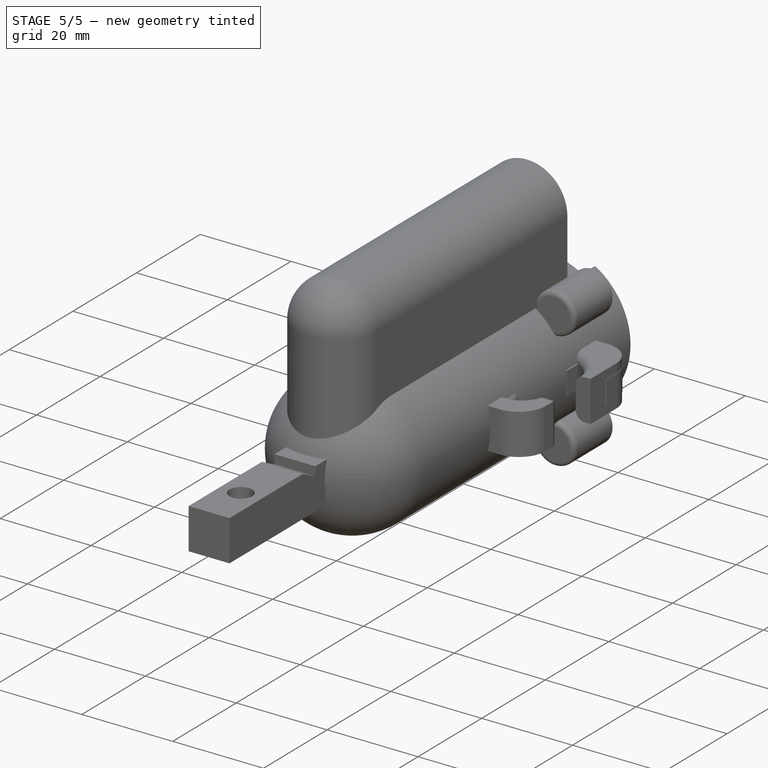
[diagram: stage 5 of 5 — iso view after this stage's code; geometry added in this stage tinted green]
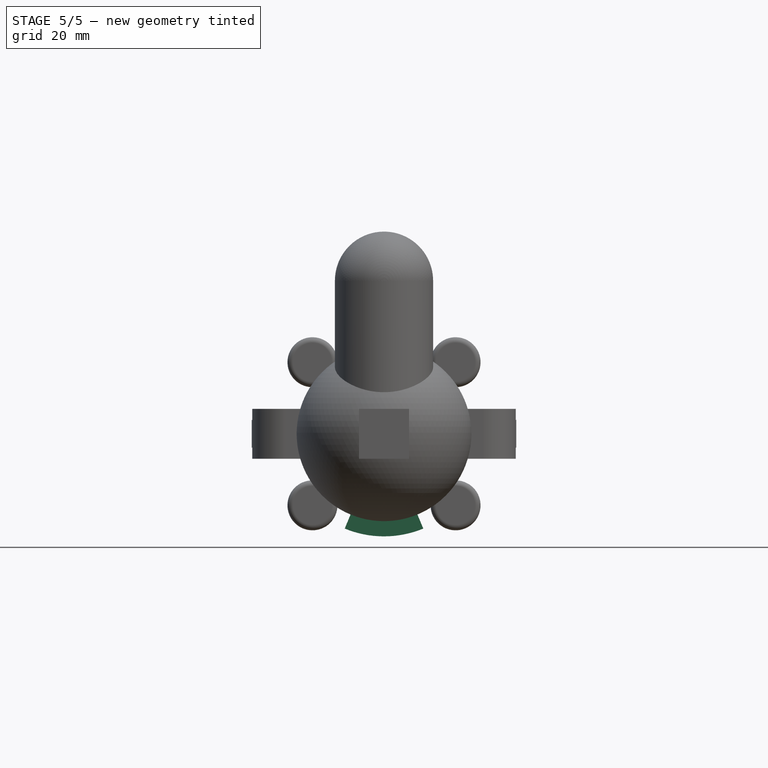
[diagram: stage 5 of 5 — front view after this stage's code; geometry added in this stage tinted green]
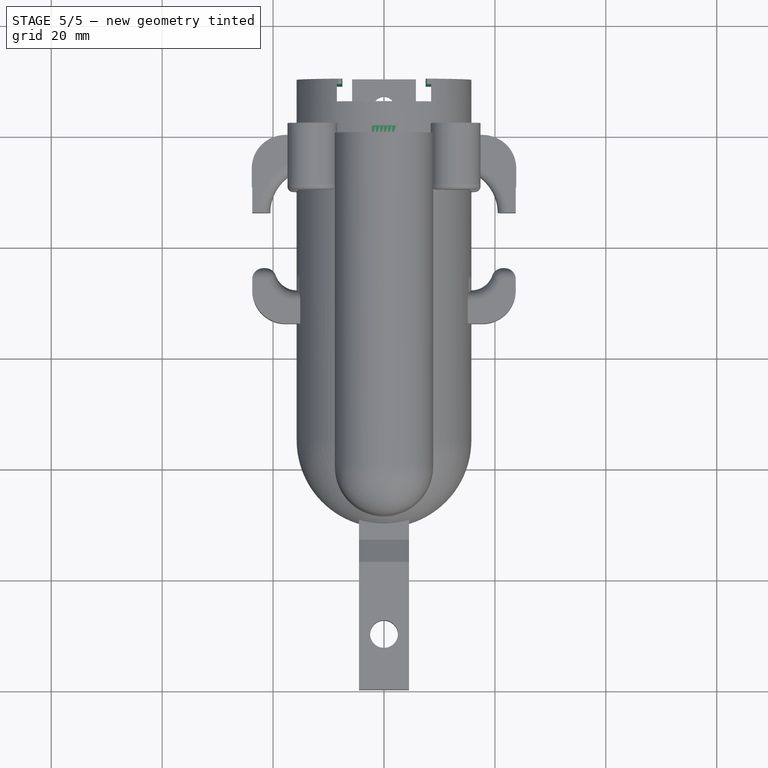
[diagram: stage 5 of 5 — top view after this stage's code; geometry added in this stage tinted green]
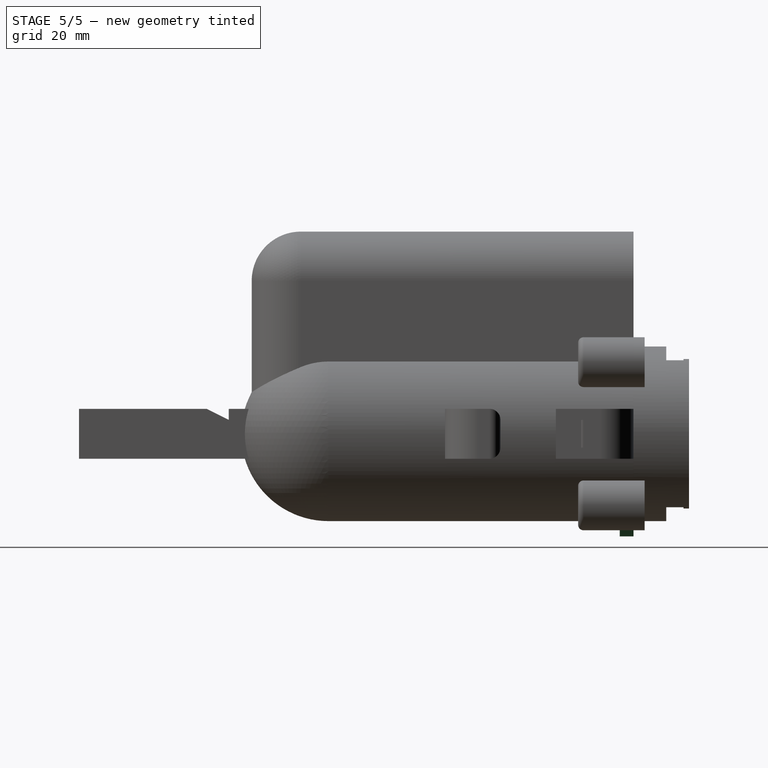
[diagram: stage 5 of 5 — right view after this stage's code; geometry added in this stage tinted green]
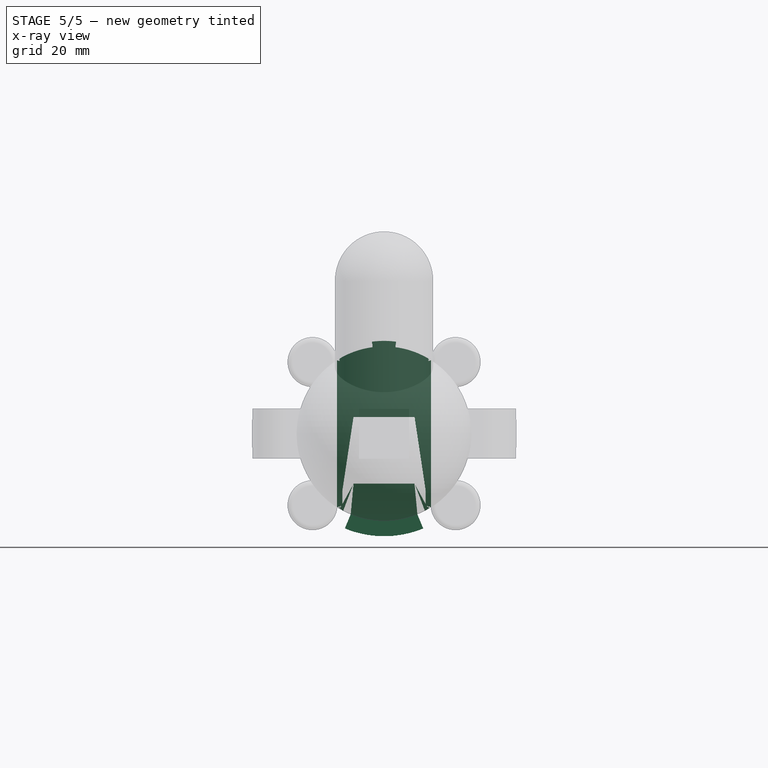
[diagram: stage 5 of 5 — x-ray composite at the front view; earlier geometry ghosted, this stage's added geometry solid]
FEATURE [PartDesign::SubtractiveBox] Box003  label="trigger_housing"
  AttacherType = Attacher::AttachEngine3D
  AttachmentOffset = pos=(16.25,-8.5,-1) rot=(0,1,0;3.14159rad)
  BaseFeature = -> Box001
  Height = 3.1
  Length = 32.5
  MapMode = 11
  Placement = pos=(-8.5,9,16.25) rot=(0.57735,0.57735,-0.57735;2.0944rad)
  Refine = true
  Support = -> [Box001]
  Width = 17
  expr: .AttachmentOffset.Base.z = -Sketch.Constraints.wallThickness / 2
  expr: Height = Sketch.Constraints.triggerFrameThickness + 0.1mm
  expr: Width = Box001.Length + Sketch.Constraints.triggerFrame * 2 + Sketch.Constraints.triggerFrameClearance * 2
  expr: Length = Cylinder008.Radius * 2 + 1mm
  expr: .AttachmentOffset.Base.y = -Width / 2
  expr: .AttachmentOffset.Base.x = Length / 2
FEATURE [PartDesign::SubtractiveBox] Box004  label="cap_cutout"
  AttacherType = Attacher::AttachEngine3D
  AttachmentOffset = pos=(16.25,-7.5,0) rot=(0,1,0;3.14159rad)
  BaseFeature = -> Box003
  Height = 1
  Length = 32.5
  MapMode = 11
  Placement = pos=(-7.5,10,16.25) rot=(0.57735,0.57735,-0.57735;2.0944rad)
  Refine = true
  Support = -> [Box003]
  Width = 15
  expr: Height = Sketch.Constraints.wallThickness / 2
  expr: Width = <<trigger_housing>>.Width - 2mm
  expr: .AttachmentOffset.Base.y = -Width / 2
  expr: .AttachmentOffset.Base.x = Length / 2
  expr: Length = <<trigger_housing>>.Length
FEATURE [PartDesign::AdditiveCylinder] Cylinder013
  Angle = 15
  AttacherType = Attacher::AttachEngine3D
  AttachmentOffset = pos=(0,0,2.5) rot=(0.659346,0.75184,0;3.14159rad)
  Height = 4
  MapMode = 5
  Placement = pos=(0,-2.5,-6e-16) rot=(0.527011,0.600941,0.600941;4.11164rad)
  Radius = 16.75
  Refine = true
  Support = -> [XZ_Plane002]
  expr: Radius = Cylinder008.Radius + 1mm
  expr: .AttachmentOffset.Rotation.Yaw = 90° + Angle / 2
  expr: Height = Sketch.Constraints.triggerFrameThickness + 1mm
  expr: .AttachmentOffset.Base.z = Sketch.Constraints.triggerFrameThickness - 0.5mm
FEATURE [PartDesign::SubtractiveBox] Box007
  AttacherType = Attacher::AttachEngine3D
  AttachmentOffset = pos=(-1,3,1) rot=(1,0,0;3.14159rad)
  BaseFeature = -> Cylinder013
  Height = 3
  Length = 1
  MapMode = 45
  Placement = pos=(-3,-1.5,17.7022) rot=(0.707107,0.707107,0;3.14159rad)
  Refine = true
  Support = -> [Cylinder013]
  Width = 6
FEATURE [PartDesign::AdditiveCylinder] Cylinder011
  Angle = 360
  AttacherType = Attacher::AttachEngine3D
  BaseFeature = -> Box007
  Height = 2.5
  MapMode = 2
  Placement = pos=(0,0,0) rot=(1,0,0;1.5708rad)
  Radius = 15.75
  Refine = true
  Support = -> [XZ_Plane002]
  expr: Height = Sketch.Constraints.triggerFrameThickness - 0.5mm
  expr: Radius = Cylinder008.Radius
FEATURE [PartDesign::AdditiveCylinder] Cylinder012
  Angle = 45
  AttacherType = Attacher::AttachEngine3D
  AttachmentOffset = pos=(0,0,0) rot=(0,0,-1;1.96349rad)
  BaseFeature = -> Cylinder011
  Height = 2.5
  MapMode = 5
  Placement = pos=(0,0,0) rot=(0.427192,0.639338,-0.639338;2.33414rad)
  Radius = 18.5
  Refine = true
  Support = -> [XZ_Plane002]
  expr: Height = Cylinder011.Height
  expr: .AttachmentOffset.Rotation.Yaw = -90deg - Angle / 2
FEATURE [PartDesign::SubtractiveCylinder] Cylinder014
  Angle = 360
  AttacherType = Attacher::AttachEngine3D
  AttachmentOffset = pos=(0,0,0) rot=(1,0,0;3.14159rad)
  BaseFeature = -> Cylinder012
  Height = 10
  MapMode = 5
  Placement = pos=(0,0,0) rot=(1,0,0;4.71239rad)
  Radius = 15.75
  Refine = true
  Support = -> [XZ_Plane002]
  expr: Radius = <<air_chamber_body>>.Radius
FEATURE [PartDesign::SubtractiveBox] Box005
  AttacherType = Attacher::AttachEngine3D
  AttachmentOffset = pos=(-5.5,-9,0) rot=(0,0,1;0rad)
  BaseFeature = -> Cylinder014
  Height = 2.5
  Length = 11
  MapMode = 5
  Placement = pos=(-5.5,2e-15,-9) rot=(1,0,0;1.5708rad)
  Refine = true
  Support = -> [XZ_Plane002]
  Width = 14
  expr: Length = <<cap_hole>>.Length + 1mm
  expr: .AttachmentOffset.Base.x = -Length / 2
  expr: Width = <<cap_hole>>.Width + 4mm
  expr: .AttachmentOffset.Base.y = -Width / 2 - 2mm
  expr: Height = Cylinder011.Height
FEATURE [PartDesign::AdditiveWedge] Wedge001
  AttacherType = Attacher::AttachEngine3D
  AttachmentOffset = pos=(11,3,0) rot=(0,0,1;3.14159rad)
  BaseFeature = -> Box005
  MapMode = 5
  Placement = pos=(5.5,-3,5) rot=(0,-1,0;3.14159rad)
  Refine = true
  Support = -> [Box005]
  X2max = 11
  X2min = 0
  Xmax = 11
  Xmin = 0
  Ymax = 3
  Ymin = 0.5
  Z2max = 1
  Z2min = 0
  Zmax = 2
  Zmin = 0
  expr: X2max = Box005.Length
  expr: Xmax = Box005.Length
FEATURE [PartDesign::SubtractiveBox] Box006
  AttacherType = Attacher::AttachEngine3D
  AttachmentOffset = pos=(8,-15.75,0) rot=(0,0,1;0rad)
  BaseFeature = -> Wedge001
  Height = 10
  Length = 11
  MapMode = 5
  Placement = pos=(8,3.5e-15,-15.75) rot=(1,0,0;1.5708rad)
  Refine = true
  Support = -> [XZ_Plane002]
  Width = 31.5
  expr: Width = Cylinder011.Radius * 2
  expr: .AttachmentOffset.Base.y = -Width / 2
  expr: .AttachmentOffset.Base.x = <<trigger_housing>>.Width / 2 - 0.5mm
FEATURE [PartDesign::Mirrored] Mirrored
  BaseFeature = -> Box006
  MirrorPlane = -> YZ_Plane002
  Originals = -> [Box006]
  Placement = pos=(8,3.5e-15,-15.75) rot=(1,0,0;1.5708rad)
  Refine = true
FEATURE [PartDesign::Body] Body002  label="trigger"
  Group = -> [Cylinder013,Box007,Cylinder011,Cylinder012,Cylinder014,Box005,Wedge001,Box006,Mirrored]
  Origin = -> Origin002
  Placement = pos=(0,40,0) rot=(0,0,1;3.14159rad)
  Tip = -> Mirrored
FEATURE [PartDesign::Fillet] Fillet005
  Base = -> Box004 [Edge16,Edge8,Edge2,Edge10]
  BaseFeature = -> Box004
  Placement = pos=(-7.5,10,16.25) rot=(0.57735,0.57735,-0.57735;2.0944rad)
  Radius = 0.5
  Refine = true
  SupportTransform = false
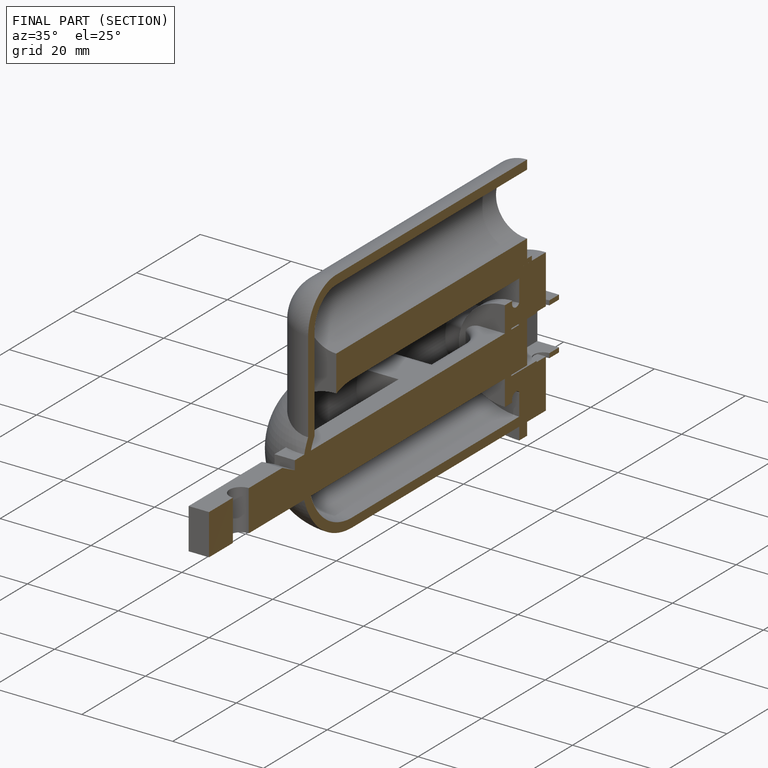
[diagram: finished part — half-section view (interior)]
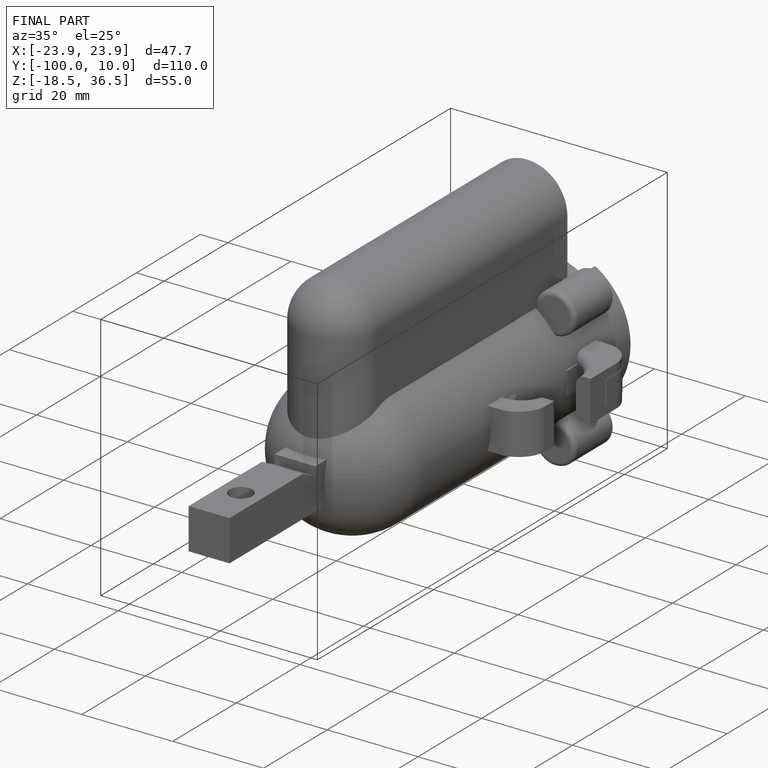
[diagram: finished part — iso view with bounding-box wireframe]
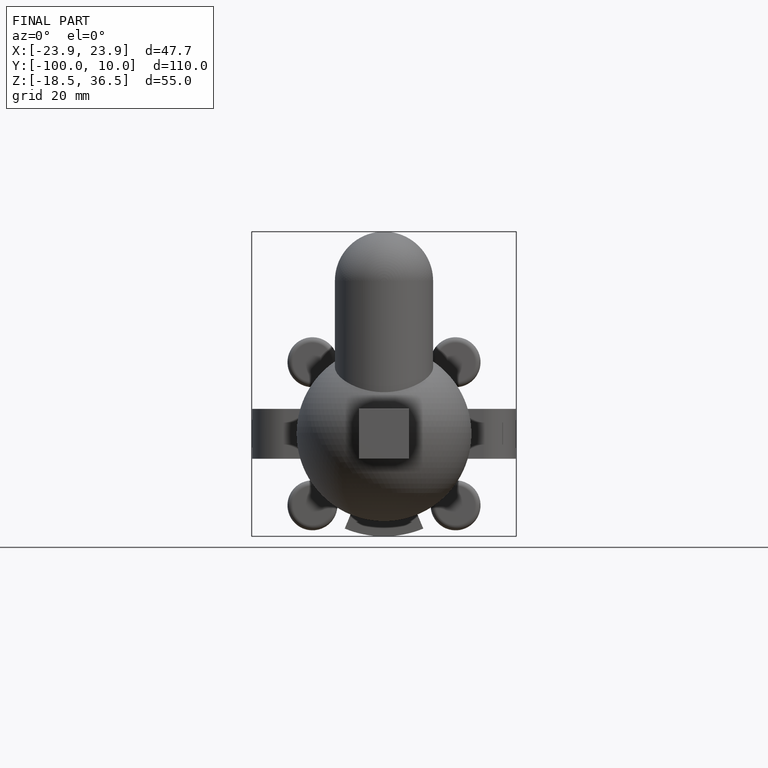
[diagram: finished part — front view with bounding-box wireframe]
